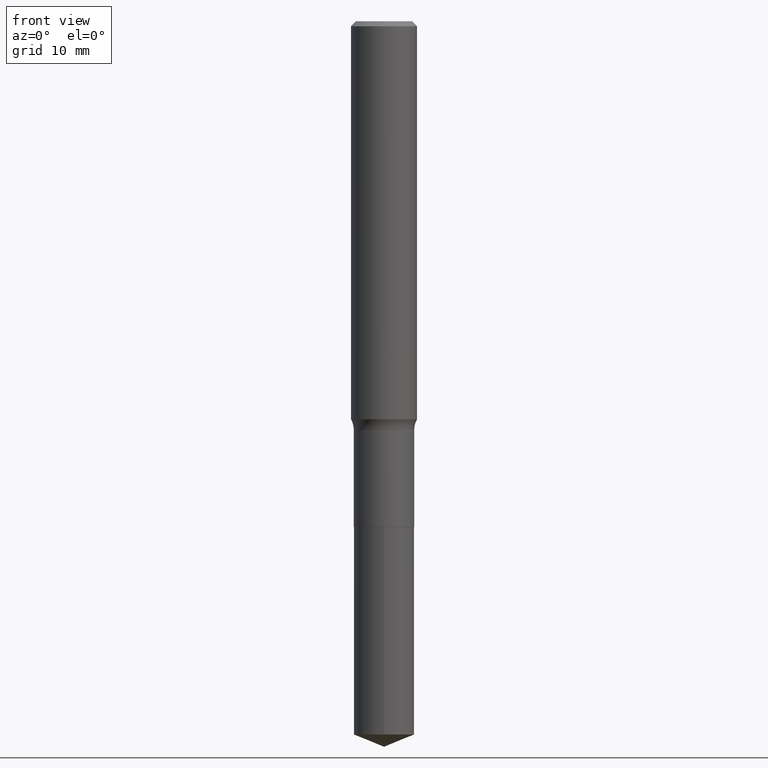
[diagram: clean part render]
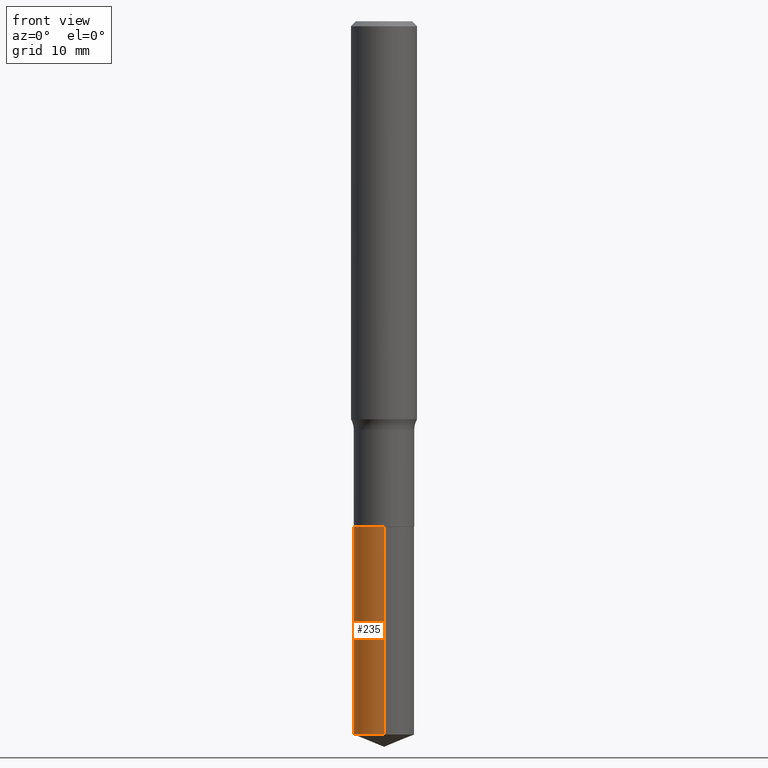
[diagram: same view with one face highlighted and labeled with its STEP entity id]
A machine part, front view. The second image highlights one B-rep face of the part: STEP entity #235.
In plain terms, the highlighted cylindrical surface (edge-blend (fillet) strip) has radius 2.7495 mm, axis along (-0, 0, 1).
Its self-contained STEP definition (entity closure, byte-faithful):
#77 = CARTESIAN_POINT ( 'NONE',  ( 6.236916829026965936E-29, -8.934505311173447321E-15, -2.554664161053343818 ) ) ;
#93 = EDGE_CURVE ( 'NONE', #430, #249, #299, .T. ) ;
#94 = AXIS2_PLACEMENT_3D ( 'NONE', #337, #257, #455 ) ;
#101 = AXIS2_PLACEMENT_3D ( 'NONE', #377, #334, #148 ) ;
#111 = VERTEX_POINT ( 'NONE', #290 ) ;
#148 = DIRECTION ( 'NONE',  ( -6.982962677686265922E-15, -1.000000000000000000, 2.523647107311097814E-15 ) ) ;
#156 = CARTESIAN_POINT ( 'NONE',  ( -7.559057098594758424E-16, -0.1082500000000089224, -2.554664161053343374 ) ) ;
#157 = EDGE_CURVE ( 'NONE', #437, #111, #313, .T. ) ;
#196 = AXIS2_PLACEMENT_3D ( 'NONE', #77, #216, #295 ) ;
#201 = ORIENTED_EDGE ( 'NONE', *, *, #93, .T. ) ;
#216 = DIRECTION ( 'NONE',  ( -2.431437355357483089E-29, 3.511575175048930123E-15, 1.000000000000000000 ) ) ;
#220 = CYLINDRICAL_SURFACE ( 'NONE', #101, 0.1082499999999999990 ) ;
#235 = ADVANCED_FACE ( 'NONE', ( #273 ), #220, .T. ) ;
#244 = ORIENTED_EDGE ( 'NONE', *, *, #408, .F. ) ;
#249 = VERTEX_POINT ( 'NONE', #382 ) ;
#253 = CARTESIAN_POINT ( 'NONE',  ( -7.559057098594939862E-16, -0.1082500000000063134, -1.810999999999999721 ) ) ;
#257 = DIRECTION ( 'NONE',  ( -2.431437355357483089E-29, 3.511575175048930123E-15, 1.000000000000000000 ) ) ;
#273 = FACE_OUTER_BOUND ( 'NONE', #421, .T. ) ;
#278 = CARTESIAN_POINT ( 'NONE',  ( 7.691625114603526203E-16, 0.1082499999999936846, -1.811000000000000165 ) ) ;
#290 = CARTESIAN_POINT ( 'NONE',  ( 7.691625114603707641E-16, 0.1082499999999936846, -1.811000000000000165 ) ) ;
#295 = DIRECTION ( 'NONE',  ( -6.982962677686265922E-15, -1.000000000000000000, 5.047294214622194840E-15 ) ) ;
#299 = LINE ( 'NONE', #253, #381 ) ;
#310 = CIRCLE ( 'NONE', #94, 0.1082499999999999990 ) ;
#313 = LINE ( 'NONE', #278, #470 ) ;
#334 = DIRECTION ( 'NONE',  ( -2.431437355357483089E-29, 3.511575175048930123E-15, 1.000000000000000000 ) ) ;
#337 = CARTESIAN_POINT ( 'NONE',  ( 4.428744008001282238E-29, -6.323072704644935995E-15, -1.810999999999999943 ) ) ;
#338 = ORIENTED_EDGE ( 'NONE', *, *, #385, .T. ) ;
#377 = CARTESIAN_POINT ( 'NONE',  ( 4.428744008001282238E-29, -6.323072704644935995E-15, -1.810999999999999943 ) ) ;
#381 = VECTOR ( 'NONE', #452, 39.37007874015748143 ) ;
#382 = CARTESIAN_POINT ( 'NONE',  ( -7.559057098594939862E-16, -0.1082500000000063134, -1.810999999999999721 ) ) ;
#385 = EDGE_CURVE ( 'NONE', #437, #430, #412, .T. ) ;
#408 = EDGE_CURVE ( 'NONE', #111, #249, #310, .T. ) ;
#409 = CARTESIAN_POINT ( 'NONE',  ( 7.691625114603706655E-16, 0.1082499999999910756, -2.554664161053344262 ) ) ;
#412 = CIRCLE ( 'NONE', #196, 0.1082500000000000129 ) ;
#421 = EDGE_LOOP ( 'NONE', ( #479, #338, #201, #244 ) ) ;
#430 = VERTEX_POINT ( 'NONE', #156 ) ;
#437 = VERTEX_POINT ( 'NONE', #409 ) ;
#452 = DIRECTION ( 'NONE',  ( -2.431437355357483089E-29, 3.511575175048929728E-15, 1.000000000000000000 ) ) ;
#455 = DIRECTION ( 'NONE',  ( -6.982962677686265922E-15, -1.000000000000000000, 2.523647107311097814E-15 ) ) ;
#468 = DIRECTION ( 'NONE',  ( -2.431437355357483089E-29, 3.511575175048929728E-15, 1.000000000000000000 ) ) ;
#470 = VECTOR ( 'NONE', #468, 39.37007874015748143 ) ;
#479 = ORIENTED_EDGE ( 'NONE', *, *, #157, .F. ) ;